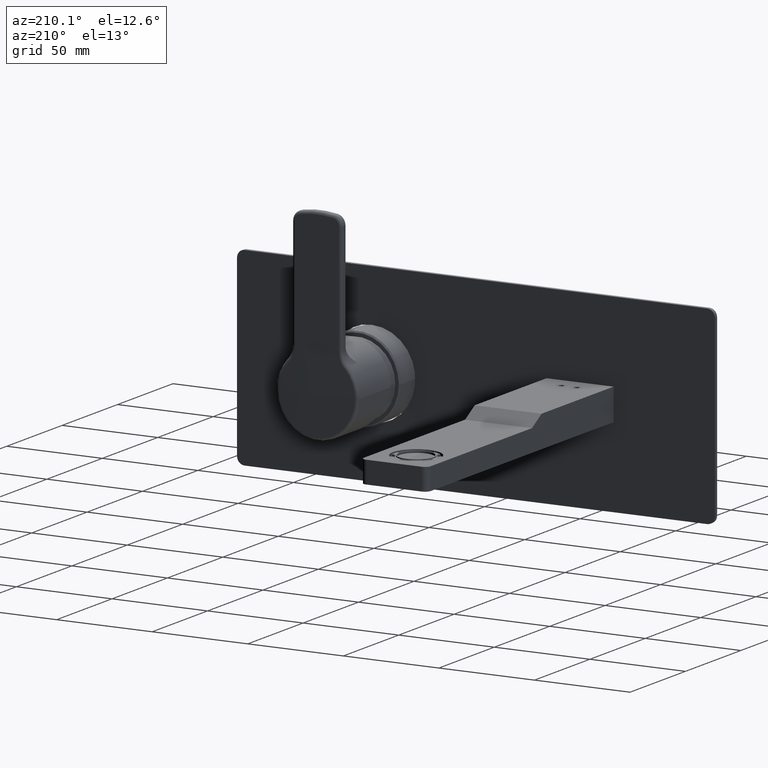
[diagram: clean part render]
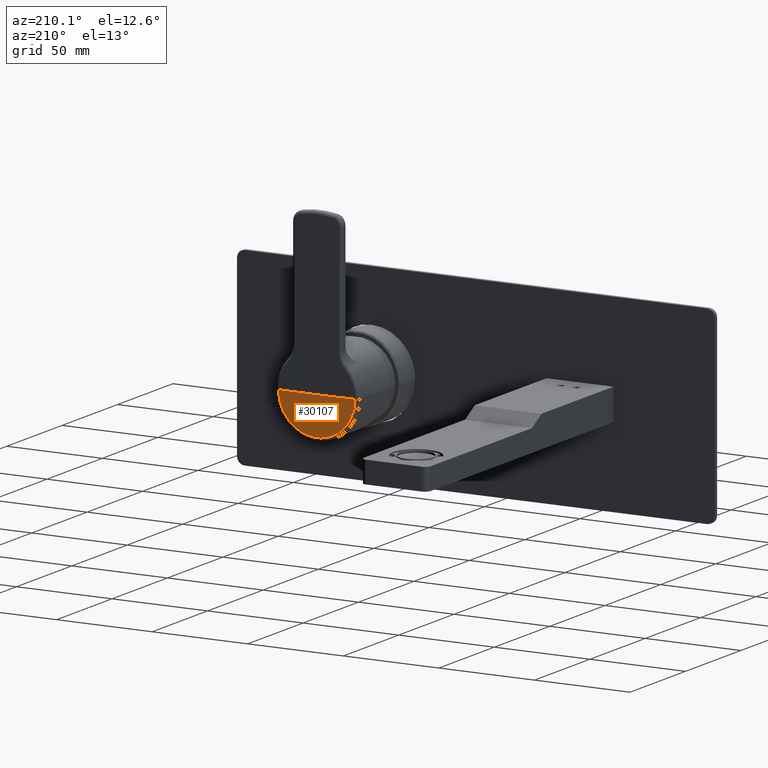
[diagram: same view with one face highlighted and labeled with its STEP entity id]
A machine part, auxiliary view. The second image highlights one B-rep face of the part: STEP entity #30107.
In plain terms, the highlighted spherical surface has radius 1000 mm.
Its self-contained STEP definition (entity closure, byte-faithful):
#9562=CARTESIAN_POINT('',(1.090000000003E2,9.963053023836E1,0.E0));
#9563=DIRECTION('',(0.E0,-1.E0,0.E0));
#9564=DIRECTION('',(-1.E0,0.E0,0.E0));
#9565=AXIS2_PLACEMENT_3D('',#9562,#9563,#9564);
#9567=CARTESIAN_POINT('',(1.090000000003E2,-9.001688482844E2,
5.808097062903E-14));
#9568=DIRECTION('',(0.E0,0.E0,1.E0));
#9569=DIRECTION('',(2.003004506760E-2,9.997993785228E-1,0.E0));
#9570=AXIS2_PLACEMENT_3D('',#9567,#9568,#9569);
#9572=CARTESIAN_POINT('',(1.090000000003E2,-9.001688482844E2,
5.808097062903E-14));
#9573=DIRECTION('',(0.E0,0.E0,-1.E0));
#9574=DIRECTION('',(-2.003004506760E-2,9.997993785228E-1,0.E0));
#9575=AXIS2_PLACEMENT_3D('',#9572,#9573,#9574);
#17471=CARTESIAN_POINT('',(1.290300450679E2,9.963053023836E1,0.E0));
#17472=VERTEX_POINT('',#17471);
#17475=CARTESIAN_POINT('',(8.896995493273E1,9.963053023836E1,
-1.249787669823E-14));
#17476=VERTEX_POINT('',#17475);
#17479=CARTESIAN_POINT('',(1.090000000003E2,9.983115171556E1,0.E0));
#17480=VERTEX_POINT('',#17479);
#30097=CARTESIAN_POINT('',(1.090000000003E2,-9.001688482844E2,
5.808097062903E-14));
#30098=DIRECTION('',(0.E0,-1.E0,0.E0));
#30099=DIRECTION('',(-1.E0,0.E0,0.E0));
#30100=AXIS2_PLACEMENT_3D('',#30097,#30098,#30099);
#30101=SPHERICAL_SURFACE('',#30100,1.E3);
#30102=ORIENTED_EDGE('',*,*,#30077,.T.);
#30103=ORIENTED_EDGE('',*,*,#30014,.T.);
#30104=ORIENTED_EDGE('',*,*,#30012,.F.);
#30105=EDGE_LOOP('',(#30102,#30103,#30104));
#30106=FACE_OUTER_BOUND('',#30105,.F.);
#30107=ADVANCED_FACE('',(#30106),#30101,.T.);
#9566=CIRCLE('',#9565,2.003004506760E1);
#9571=CIRCLE('',#9570,1.E3);
#9576=CIRCLE('',#9575,1.E3);
#30012=EDGE_CURVE('',#17476,#17480,#9576,.T.);
#30014=EDGE_CURVE('',#17472,#17480,#9571,.T.);
#30077=EDGE_CURVE('',#17476,#17472,#9566,.T.);